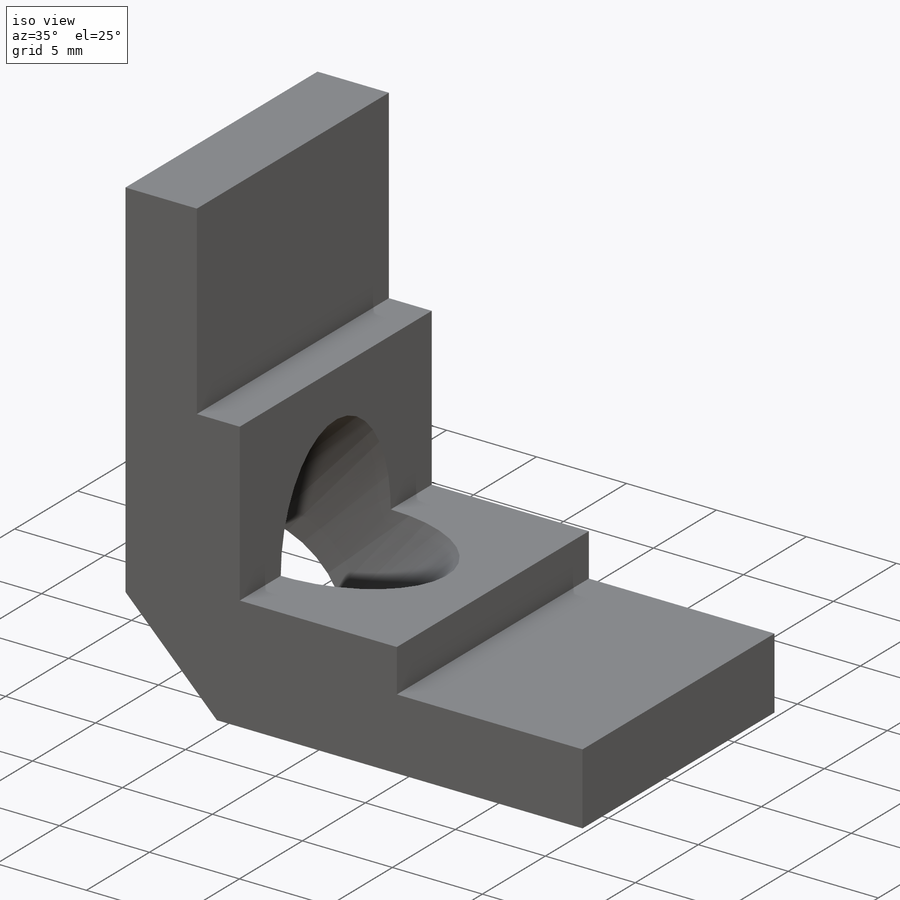
[diagram: iso view]
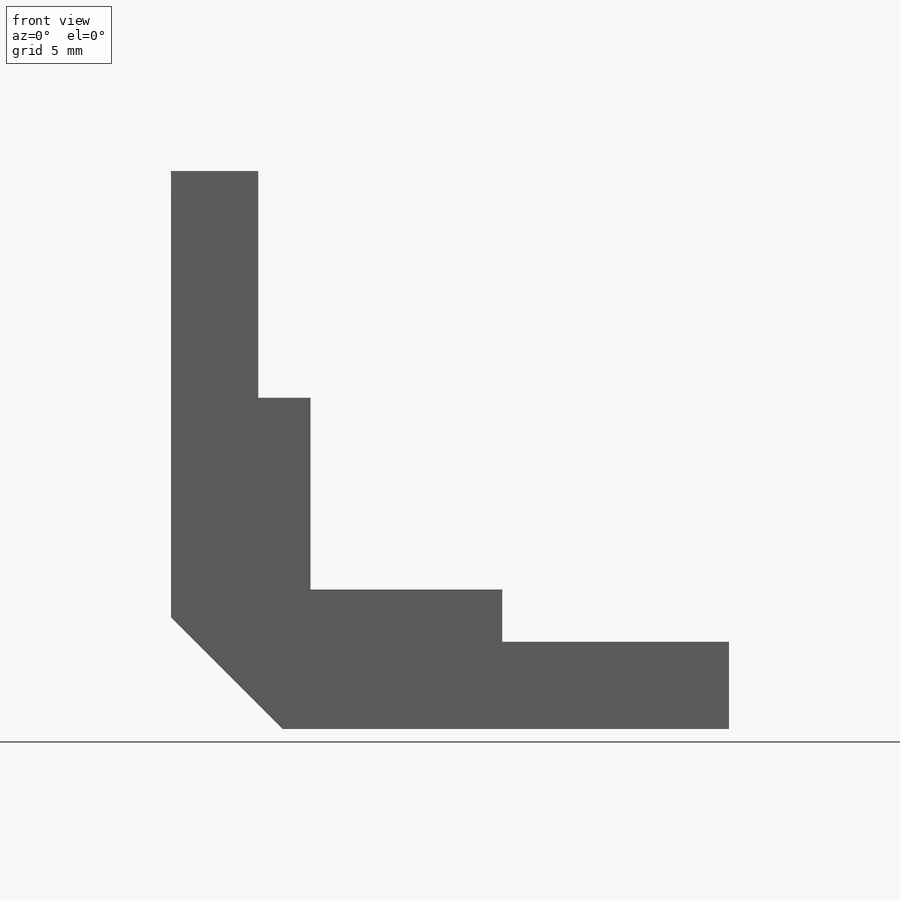
[diagram: front view]
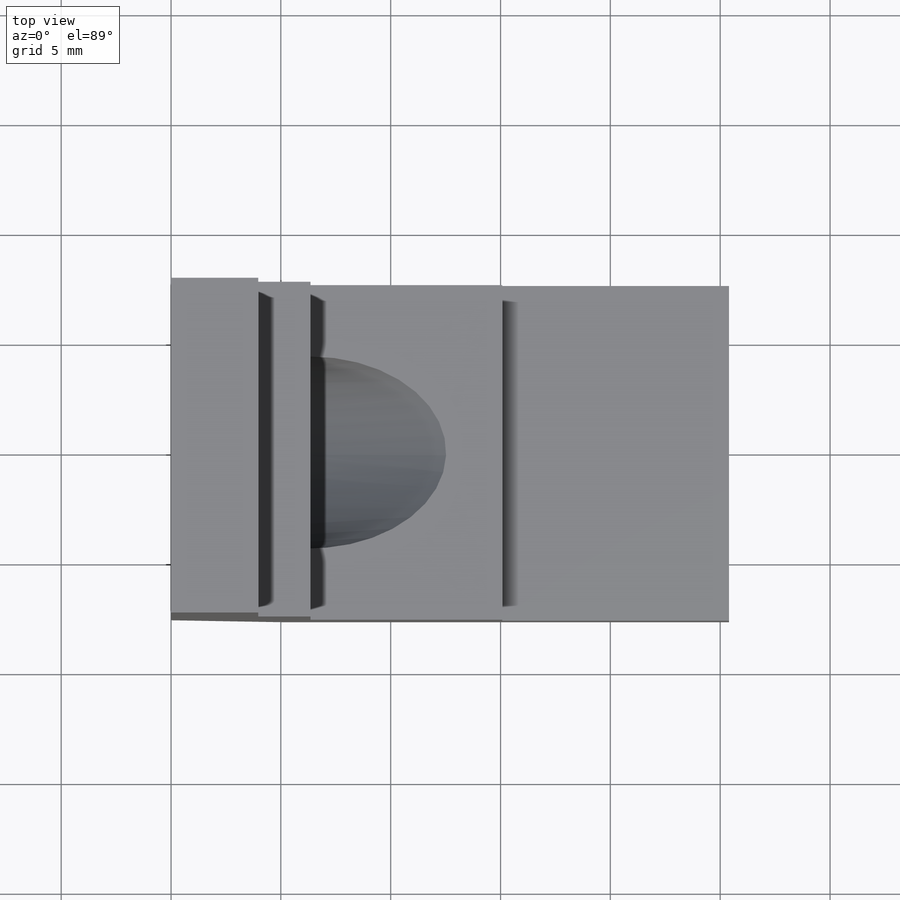
[diagram: top view]
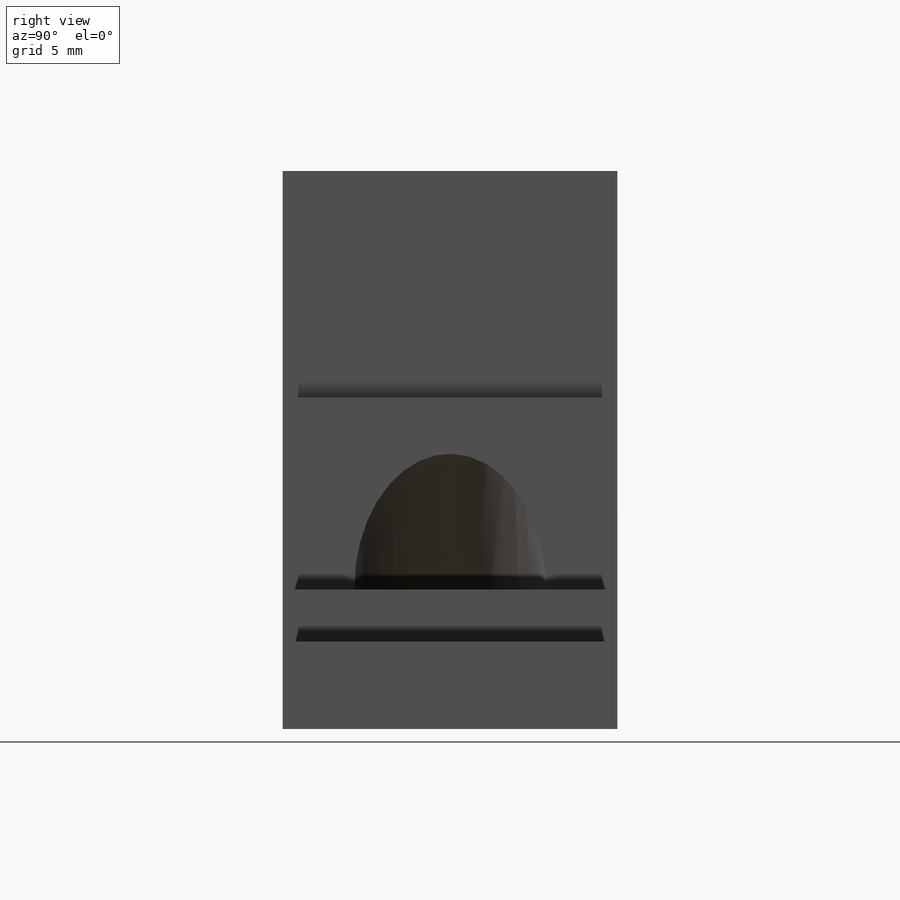
[diagram: right view]
SOLIDWORKS PART (.sldprt)
format: sldprt  version: not decoded by parser v0  size: 211,968 bytes
history: native  units: mm
features: sketch x5, cut_extrude x2, material x1, extrude x1, chamfer x1, hole x1 (+16 scaffold rows collapsed)
feature tree (27):
  scaffold x16  (default folders/planes/origin — collapsed)
  material  "Material <not specified>"
  sketch  "Sketch1"  dims[D1=6.35mm D2=25.4mm]
  extrude  "Boss-Extrude1"  Depth=15.24mm
  sketch  "Sketch2"  dims[D1=3.175mm D2=3.048mm edge=~8.73125mm]
  cut_extrude  "Cut-Extrude1"  Depth=2.38125mm
  sketch  "Sketch4"  dims[c1.D1=3.175mm c1.D2=3.048mm c2.D1=9.652mm]
  cut_extrude  "Cut-Extrude2"  Depth=2.38125mm
  chamfer  "Chamfer1"  Distance=5.08mm Angle=45deg
  hole  "11/32 (0.34375) Diameter Hole1"  Diameter=8.73125mm Depth=32.328922mm
  sketch  "Sketch9"
  sketch  "Sketch10"  dims[hole-wizard template sketch: 59 standard entries collapsed; hole parameters kept: c18.Thru Hole Dia.=~8.73125mm c18.Thru Hole Depth=~32.328922mm]
decode coverage: 9 of 10 modeling features carry decoded parameters
note: ~ marks probable driven/reference dimensions
note: suppression state not decoded; provenance and decode notes live in map.json
